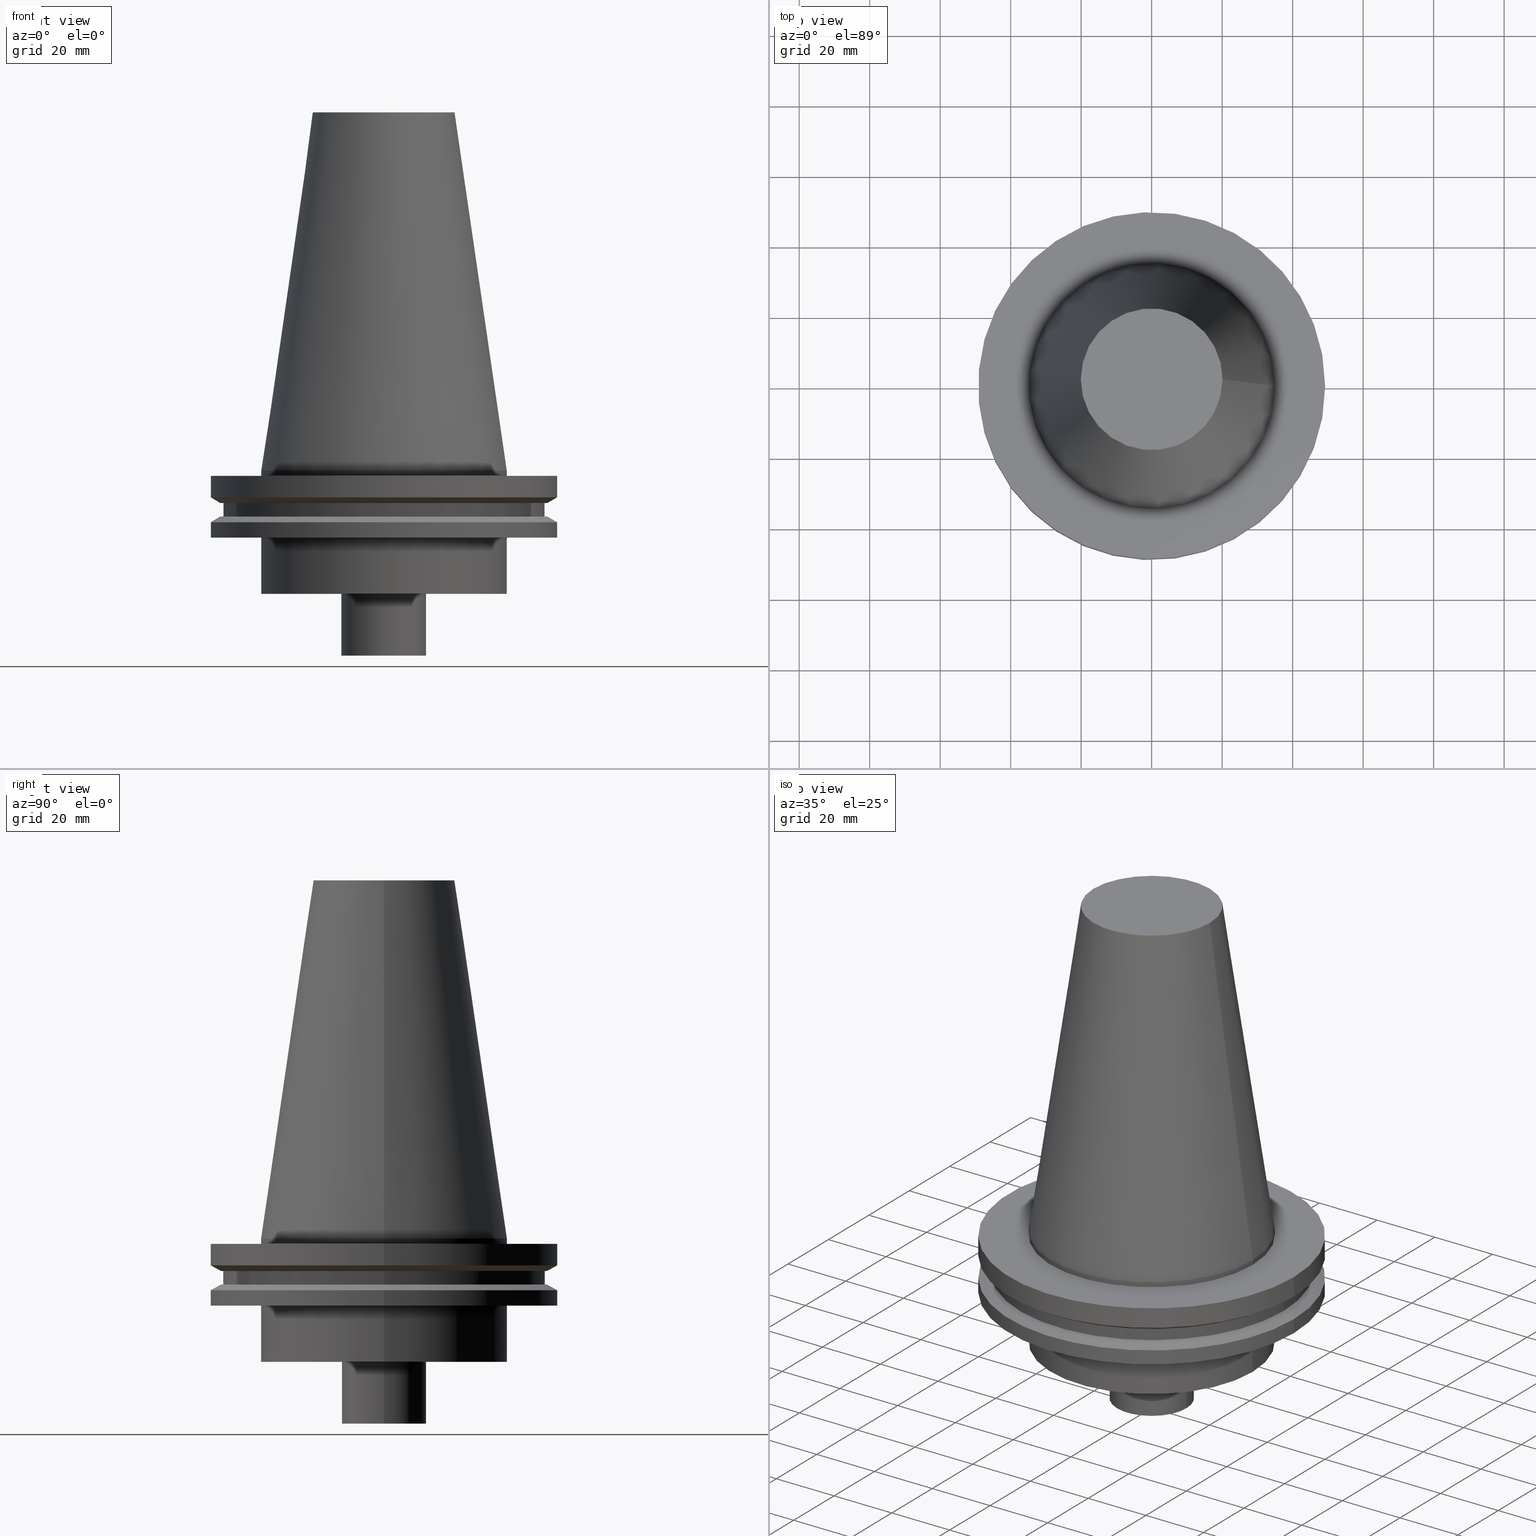
[diagram: canonical four-view strip — front | top / right | iso, engineering-drawing reading convention]
A machine part, canonical four-view strip (front | top / right | iso — engineering-drawing reading convention). The complete STEP part file that produces these views, byte-faithful:
ISO-10303-21;
HEADER;
FILE_DESCRIPTION (( 'STEP AP203' ),
    '1' );
FILE_NAME ('11.326.620.stp',
    '2022-03-09T14:49:30',
    ( '' ),
    ( '' ),
    'SwSTEP 2.0',
    'SolidWorks 2021',
    '' );
FILE_SCHEMA (( 'CONFIG_CONTROL_DESIGN' ));
ENDSEC;

DATA;
#1 = DIRECTION ( 'NONE',  ( 1.000000000000000000, 0.000000000000000000, 0.000000000000000000 ) ) ;
#2 = DATE_AND_TIME ( #391, #118 ) ;
#3 = PLANE ( 'NONE',  #380 ) ;
#4 = EDGE_LOOP ( 'NONE', ( #270 ) ) ;
#5 = DIRECTION ( 'NONE',  ( 1.000000000000000000, 0.000000000000000000, 0.000000000000000000 ) ) ;
#6 = CIRCLE ( 'NONE', #79, 49.21499999999998920 ) ;
#7 = LOCAL_TIME ( 8, 49, 30.00000000000000000, #307 ) ;
#8 = EDGE_CURVE ( 'NONE', #135, #135, #176, .T. ) ;
#9 = CIRCLE ( 'NONE', #277, 20.10819343178871321 ) ;
#10 = DIRECTION ( 'NONE',  ( 0.000000000000000000, 0.000000000000000000, -1.000000000000000000 ) ) ;
#11 = DIRECTION ( 'NONE',  ( 1.000000000000000000, 0.000000000000000000, 0.000000000000000000 ) ) ;
#12 = ADVANCED_FACE ( 'NONE', ( #89, #211 ), #326, .T. ) ;
#13 = PRODUCT_DEFINITION_SHAPE ( 'NONE', 'NONE',  #162 ) ;
#14 =( NAMED_UNIT ( * ) SI_UNIT ( $, .STERADIAN. ) SOLID_ANGLE_UNIT ( ) );
#15 = DIRECTION ( 'NONE',  ( -0.000000000000000000, -0.000000000000000000, 1.000000000000000000 ) ) ;
#16 =( NAMED_UNIT ( * ) PLANE_ANGLE_UNIT ( ) SI_UNIT ( $, .RADIAN. ) );
#17 = DIRECTION ( 'NONE',  ( 1.000000000000000000, 0.000000000000000000, 0.000000000000000000 ) ) ;
#18 = AXIS2_PLACEMENT_3D ( 'NONE', #38, #194, #5 ) ;
#19 = EDGE_CURVE ( 'NONE', #311, #311, #376, .T. ) ;
#20 = VERTEX_POINT ( 'NONE', #180 ) ;
#21 = EDGE_LOOP ( 'NONE', ( #23 ) ) ;
#22 = CARTESIAN_POINT ( 'NONE',  ( 34.92499999999999716, 0.000000000000000000, -35.00000000000000000 ) ) ;
#23 = ORIENTED_EDGE ( 'NONE', *, *, #202, .T. ) ;
#24 = ORIENTED_EDGE ( 'NONE', *, *, #314, .F. ) ;
#25 = PERSON_AND_ORGANIZATION ( #242, #220 ) ;
#26 = DIRECTION ( 'NONE',  ( -0.000000000000000000, -0.000000000000000000, 1.000000000000000000 ) ) ;
#27 = DIRECTION ( 'NONE',  ( -0.000000000000000000, -0.000000000000000000, 1.000000000000000000 ) ) ;
#28 = PERSON_AND_ORGANIZATION ( #242, #220 ) ;
#29 = DIRECTION ( 'NONE',  ( 1.000000000000000000, 0.000000000000000000, 0.000000000000000000 ) ) ;
#30 = APPROVAL_STATUS ( 'not_yet_approved' ) ;
#31 = DIRECTION ( 'NONE',  ( 1.000000000000000000, 0.000000000000000000, 0.000000000000000000 ) ) ;
#32 = ORIENTED_EDGE ( 'NONE', *, *, #8, .F. ) ;
#33 = SHAPE_DEFINITION_REPRESENTATION ( #13, #116 ) ;
#34 = PRODUCT_DEFINITION_FORMATION_WITH_SPECIFIED_SOURCE ( 'ANY', '', #237, .NOT_KNOWN. ) ;
#35 = EDGE_CURVE ( 'NONE', #225, #225, #395, .T. ) ;
#36 = FACE_OUTER_BOUND ( 'NONE', #366, .T. ) ;
#37 = ORIENTED_EDGE ( 'NONE', *, *, #49, .F. ) ;
#38 = CARTESIAN_POINT ( 'NONE',  ( 0.000000000000000000, 46.43919780457007818, -9.204999999999998295 ) ) ;
#39 = DIRECTION ( 'NONE',  ( 0.000000000000000000, 0.000000000000000000, -1.000000000000000000 ) ) ;
#40 = EDGE_LOOP ( 'NONE', ( #37 ) ) ;
#41 = FACE_BOUND ( 'NONE', #323, .T. ) ;
#42 = CONICAL_SURFACE ( 'NONE', #61, 46.43919780457007818, 1.047197551196575205 ) ;
#43 = FACE_OUTER_BOUND ( 'NONE', #352, .T. ) ;
#44 = APPLICATION_CONTEXT ( 'configuration controlled 3d designs of mechanical parts and assemblies' ) ;
#45 = CARTESIAN_POINT ( 'NONE',  ( 49.21500000000000341, 0.000000000000000000, -7.602389855251287187 ) ) ;
#46 = ADVANCED_FACE ( 'NONE', ( #122, #56 ), #173, .T. ) ;
#47 = CARTESIAN_POINT ( 'NONE',  ( 0.000000000000000000, 0.000000000000000000, -14.65761014474876944 ) ) ;
#48 = DIRECTION ( 'NONE',  ( -0.000000000000000000, -0.000000000000000000, 1.000000000000000000 ) ) ;
#49 = EDGE_CURVE ( 'NONE', #321, #321, #9, .T. ) ;
#50 = AXIS2_PLACEMENT_3D ( 'NONE', #245, #286, #11 ) ;
#51 = PERSON_AND_ORGANIZATION ( #242, #220 ) ;
#52 = ORIENTED_EDGE ( 'NONE', *, *, #278, .T. ) ;
#53 = ORIENTED_EDGE ( 'NONE', *, *, #124, .T. ) ;
#54 = DIRECTION ( 'NONE',  ( 1.000000000000000000, 0.000000000000000000, 0.000000000000000000 ) ) ;
#55 = PERSON_AND_ORGANIZATION ( #242, #220 ) ;
#56 = FACE_OUTER_BOUND ( 'NONE', #131, .T. ) ;
#57 = COORDINATED_UNIVERSAL_TIME_OFFSET ( 6, 0, .BEHIND. ) ;
#58 = CARTESIAN_POINT ( 'NONE',  ( 0.000000000000000000, 49.21499999999998920, -19.04999999999999716 ) ) ;
#59 = ADVANCED_FACE ( 'NONE', ( #203, #317 ), #108, .T. ) ;
#60 = AXIS2_PLACEMENT_3D ( 'NONE', #297, #26, #31 ) ;
#61 = AXIS2_PLACEMENT_3D ( 'NONE', #193, #285, #374 ) ;
#62 = DATE_TIME_ROLE ( 'classification_date' ) ;
#63 = DIRECTION ( 'NONE',  ( 1.000000000000000000, 0.000000000000000000, 0.000000000000000000 ) ) ;
#64 = ORIENTED_EDGE ( 'NONE', *, *, #202, .F. ) ;
#65 = PERSON_AND_ORGANIZATION_ROLE ( 'creator' ) ;
#66 = CARTESIAN_POINT ( 'NONE',  ( 0.000000000000000000, 12.00000000000000000, -52.49999999999997868 ) ) ;
#67 = CC_DESIGN_PERSON_AND_ORGANIZATION_ASSIGNMENT ( #28, #65, ( #34 ) ) ;
#68 = FACE_OUTER_BOUND ( 'NONE', #368, .T. ) ;
#69 = UNCERTAINTY_MEASURE_WITH_UNIT (LENGTH_MEASURE( 1.000000000000000082E-05 ), #377, 'distance_accuracy_value', 'NONE');
#70 = CYLINDRICAL_SURFACE ( 'NONE', #266, 34.92499999999999005 ) ;
#71 = ORIENTED_EDGE ( 'NONE', *, *, #19, .F. ) ;
#72 = AXIS2_PLACEMENT_3D ( 'NONE', #163, #39, #167 ) ;
#73 = AXIS2_PLACEMENT_3D ( 'NONE', #367, #273, #390 ) ;
#74 = DIRECTION ( 'NONE',  ( 1.000000000000000000, 0.000000000000000000, 0.000000000000000000 ) ) ;
#75 = CIRCLE ( 'NONE', #171, 34.92499999999999716 ) ;
#76 = CC_DESIGN_PERSON_AND_ORGANIZATION_ASSIGNMENT ( #330, #96, ( #34 ) ) ;
#77 = CARTESIAN_POINT ( 'NONE',  ( 45.64500000000000313, 0.000000000000000000, -13.05499999999999794 ) ) ;
#78 = VERTEX_POINT ( 'NONE', #264 ) ;
#79 = AXIS2_PLACEMENT_3D ( 'NONE', #360, #130, #63 ) ;
#80 = CARTESIAN_POINT ( 'NONE',  ( 0.000000000000000000, 0.000000000000000000, 0.000000000000000000 ) ) ;
#81 = AXIS2_PLACEMENT_3D ( 'NONE', #206, #172, #238 ) ;
#82 = DIRECTION ( 'NONE',  ( 1.000000000000000000, 0.000000000000000000, 0.000000000000000000 ) ) ;
#83 = CC_DESIGN_SECURITY_CLASSIFICATION ( #141, ( #34 ) ) ;
#84 = VERTEX_POINT ( 'NONE', #345 ) ;
#85 = ORIENTED_EDGE ( 'NONE', *, *, #343, .T. ) ;
#86 = EDGE_CURVE ( 'NONE', #384, #384, #230, .T. ) ;
#87 = ORIENTED_EDGE ( 'NONE', *, *, #124, .F. ) ;
#88 = COORDINATED_UNIVERSAL_TIME_OFFSET ( 6, 0, .BEHIND. ) ;
#89 = FACE_OUTER_BOUND ( 'NONE', #340, .T. ) ;
#90 = LOCAL_TIME ( 8, 49, 30.00000000000000000, #247 ) ;
#91 = PERSON_AND_ORGANIZATION_ROLE ( 'classification_officer' ) ;
#92 = EDGE_LOOP ( 'NONE', ( #354 ) ) ;
#93 = APPROVAL ( #262, 'UNSPECIFIED' ) ;
#94 = APPROVAL_DATE_TIME ( #304, #351 ) ;
#95 = DIRECTION ( 'NONE',  ( -0.000000000000000000, -0.000000000000000000, 1.000000000000000000 ) ) ;
#96 = PERSON_AND_ORGANIZATION_ROLE ( 'design_supplier' ) ;
#97 = FACE_BOUND ( 'NONE', #296, .T. ) ;
#98 = AXIS2_PLACEMENT_3D ( 'NONE', #281, #10, #170 ) ;
#99 = APPROVAL_ROLE ( '' ) ;
#100 = FACE_BOUND ( 'NONE', #268, .T. ) ;
#101 = DIRECTION ( 'NONE',  ( 1.000000000000000000, 0.000000000000000000, 0.000000000000000000 ) ) ;
#102 = DESIGN_CONTEXT ( 'detailed design', #387, 'design' ) ;
#103 = CARTESIAN_POINT ( 'NONE',  ( 49.21499999999998920, 0.000000000000000000, -19.04999999999999716 ) ) ;
#104 = ORIENTED_EDGE ( 'NONE', *, *, #35, .F. ) ;
#105 = CARTESIAN_POINT ( 'NONE',  ( 0.000000000000000000, 0.000000000000000000, 101.5999999999999943 ) ) ;
#106 = ORIENTED_EDGE ( 'NONE', *, *, #154, .T. ) ;
#107 = PLANE ( 'NONE',  #18 ) ;
#108 = CONICAL_SURFACE ( 'NONE', #306, 49.21499999999998920, 1.047197551196554333 ) ;
#109 = DIRECTION ( 'NONE',  ( -0.000000000000000000, -0.000000000000000000, 1.000000000000000000 ) ) ;
#110 = ADVANCED_FACE ( 'NONE', ( #265, #215 ), #254, .F. ) ;
#111 = PLANE ( 'NONE',  #98 ) ;
#112 = EDGE_LOOP ( 'NONE', ( #64 ) ) ;
#113 = AXIS2_PLACEMENT_3D ( 'NONE', #58, #364, #1 ) ;
#114 = APPLICATION_PROTOCOL_DEFINITION ( 'international standard', 'config_control_design', 1994, #387 ) ;
#115 = DIRECTION ( 'NONE',  ( -0.000000000000000000, -0.000000000000000000, 1.000000000000000000 ) ) ;
#116 = ADVANCED_BREP_SHAPE_REPRESENTATION ( '11.326.620', ( #301, #81 ), #371 ) ;
#117 = ORIENTED_EDGE ( 'NONE', *, *, #139, .F. ) ;
#118 = LOCAL_TIME ( 8, 49, 30.00000000000000000, #57 ) ;
#119 = PERSON_AND_ORGANIZATION ( #242, #220 ) ;
#120 = ORIENTED_EDGE ( 'NONE', *, *, #49, .T. ) ;
#121 = MECHANICAL_CONTEXT ( 'NONE', #44, 'mechanical' ) ;
#122 = FACE_OUTER_BOUND ( 'NONE', #319, .T. ) ;
#123 = AXIS2_PLACEMENT_3D ( 'NONE', #105, #282, #228 ) ;
#124 = EDGE_CURVE ( 'NONE', #174, #174, #148, .T. ) ;
#125 = DIRECTION ( 'NONE',  ( -0.000000000000000000, -0.000000000000000000, 1.000000000000000000 ) ) ;
#126 = AXIS2_PLACEMENT_3D ( 'NONE', #80, #243, #175 ) ;
#127 = CARTESIAN_POINT ( 'NONE',  ( 0.000000000000000000, 0.000000000000000000, -35.00000000000000000 ) ) ;
#128 = AXIS2_PLACEMENT_3D ( 'NONE', #394, #336, #251 ) ;
#129 = DATE_AND_TIME ( #244, #7 ) ;
#130 = DIRECTION ( 'NONE',  ( -0.000000000000000000, -0.000000000000000000, 1.000000000000000000 ) ) ;
#131 = EDGE_LOOP ( 'NONE', ( #106 ) ) ;
#132 = CARTESIAN_POINT ( 'NONE',  ( 0.000000000000000000, 0.000000000000000000, -13.05499999999999794 ) ) ;
#133 = ORIENTED_EDGE ( 'NONE', *, *, #154, .F. ) ;
#134 = CARTESIAN_POINT ( 'NONE',  ( 34.92499999999999005, 0.000000000000000000, 0.000000000000000000 ) ) ;
#135 = VERTEX_POINT ( 'NONE', #134 ) ;
#136 = ORIENTED_EDGE ( 'NONE', *, *, #8, .T. ) ;
#137 = FACE_OUTER_BOUND ( 'NONE', #295, .T. ) ;
#138 = FACE_BOUND ( 'NONE', #40, .T. ) ;
#139 = EDGE_CURVE ( 'NONE', #201, #201, #6, .T. ) ;
#140 = AXIS2_PLACEMENT_3D ( 'NONE', #153, #178, #54 ) ;
#141 = SECURITY_CLASSIFICATION ( '', '', #212 ) ;
#142 = FACE_BOUND ( 'NONE', #92, .T. ) ;
#143 = CARTESIAN_POINT ( 'NONE',  ( 0.000000000000000000, 0.000000000000000000, 101.5999999999999801 ) ) ;
#144 = CARTESIAN_POINT ( 'NONE',  ( 46.43919780457007818, 0.000000000000000000, -9.204999999999991189 ) ) ;
#145 = DIRECTION ( 'NONE',  ( 1.000000000000000000, 0.000000000000000000, 0.000000000000000000 ) ) ;
#146 = CIRCLE ( 'NONE', #165, 46.43919780457007818 ) ;
#147 = EDGE_CURVE ( 'NONE', #20, #20, #291, .T. ) ;
#148 = CIRCLE ( 'NONE', #246, 34.92499999999999716 ) ;
#149 = EDGE_LOOP ( 'NONE', ( #87 ) ) ;
#150 = APPROVAL_PERSON_ORGANIZATION ( #379, #93, #356 ) ;
#151 = ORIENTED_EDGE ( 'NONE', *, *, #139, .T. ) ;
#152 = VERTEX_POINT ( 'NONE', #45 ) ;
#153 = CARTESIAN_POINT ( 'NONE',  ( 0.000000000000000000, 0.000000000000000000, -19.04999999999999716 ) ) ;
#154 = EDGE_CURVE ( 'NONE', #353, #353, #249, .T. ) ;
#155 = DIRECTION ( 'NONE',  ( -0.000000000000000000, -0.000000000000000000, 1.000000000000000000 ) ) ;
#156 = APPROVAL_ROLE ( '' ) ;
#157 = DIRECTION ( 'NONE',  ( 0.000000000000000000, -0.000000000000000000, 1.000000000000000000 ) ) ;
#158 = DIRECTION ( 'NONE',  ( 1.000000000000000000, 0.000000000000000000, 0.000000000000000000 ) ) ;
#159 = AXIS2_PLACEMENT_3D ( 'NONE', #236, #115, #17 ) ;
#160 = CARTESIAN_POINT ( 'NONE',  ( 0.000000000000000000, 0.000000000000000000, 101.5999999999999943 ) ) ;
#161 = PLANE ( 'NONE',  #197 ) ;
#162 = PRODUCT_DEFINITION ( 'UNKNOWN', '', #34, #102 ) ;
#163 = CARTESIAN_POINT ( 'NONE',  ( 0.000000000000000000, 0.000000000000000000, 0.000000000000000000 ) ) ;
#164 = AXIS2_PLACEMENT_3D ( 'NONE', #259, #372, #255 ) ;
#165 = AXIS2_PLACEMENT_3D ( 'NONE', #392, #186, #256 ) ;
#166 = AXIS2_PLACEMENT_3D ( 'NONE', #258, #200, #199 ) ;
#167 = DIRECTION ( 'NONE',  ( -1.000000000000000000, 0.000000000000000000, 0.000000000000000000 ) ) ;
#168 = ADVANCED_FACE ( 'NONE', ( #224, #68 ), #308, .T. ) ;
#169 = CC_DESIGN_APPROVAL ( #252, ( #141 ) ) ;
#170 = DIRECTION ( 'NONE',  ( -1.000000000000000000, 0.000000000000000000, -0.000000000000000000 ) ) ;
#171 = AXIS2_PLACEMENT_3D ( 'NONE', #341, #344, #339 ) ;
#172 = DIRECTION ( 'NONE',  ( 0.000000000000000000, 0.000000000000000000, 1.000000000000000000 ) ) ;
#173 = CYLINDRICAL_SURFACE ( 'NONE', #50, 45.64500000000000313 ) ;
#174 = VERTEX_POINT ( 'NONE', #22 ) ;
#175 = DIRECTION ( 'NONE',  ( 1.000000000000000000, 0.000000000000000000, 0.000000000000000000 ) ) ;
#176 = CIRCLE ( 'NONE', #126, 34.92499999999999005 ) ;
#177 = VERTEX_POINT ( 'NONE', #316 ) ;
#178 = DIRECTION ( 'NONE',  ( -0.000000000000000000, -0.000000000000000000, 1.000000000000000000 ) ) ;
#179 = ORIENTED_EDGE ( 'NONE', *, *, #147, .F. ) ;
#180 = CARTESIAN_POINT ( 'NONE',  ( 45.64500000000000313, 0.000000000000000000, -9.204999999999991189 ) ) ;
#181 = EDGE_LOOP ( 'NONE', ( #71 ) ) ;
#182 = CARTESIAN_POINT ( 'NONE',  ( 0.000000000000000000, 0.000000000000000000, -1.499999999999987566 ) ) ;
#183 = CIRCLE ( 'NONE', #328, 49.21500000000000341 ) ;
#184 = APPROVAL_DATE_TIME ( #2, #252 ) ;
#185 = FACE_OUTER_BOUND ( 'NONE', #21, .T. ) ;
#186 = DIRECTION ( 'NONE',  ( -0.000000000000000000, -0.000000000000000000, 1.000000000000000000 ) ) ;
#187 = PRODUCT_RELATED_PRODUCT_CATEGORY ( 'detail', '', ( #237 ) ) ;
#188 = EDGE_LOOP ( 'NONE', ( #240 ) ) ;
#189 = PERSON_AND_ORGANIZATION ( #242, #220 ) ;
#190 = DIRECTION ( 'NONE',  ( -0.000000000000000000, -0.000000000000000000, 1.000000000000000000 ) ) ;
#191 = FACE_OUTER_BOUND ( 'NONE', #332, .T. ) ;
#192 = ADVANCED_FACE ( 'NONE', ( #191 ), #3, .F. ) ;
#193 = CARTESIAN_POINT ( 'NONE',  ( 0.000000000000000000, 0.000000000000000000, -9.204999999999991189 ) ) ;
#194 = DIRECTION ( 'NONE',  ( 0.000000000000000000, -0.000000000000000000, 1.000000000000000000 ) ) ;
#195 = EDGE_LOOP ( 'NONE', ( #325 ) ) ;
#196 = CARTESIAN_POINT ( 'NONE',  ( 0.000000000000000000, 0.000000000000000000, 101.5999999999999943 ) ) ;
#197 = AXIS2_PLACEMENT_3D ( 'NONE', #222, #335, #219 ) ;
#198 = AXIS2_PLACEMENT_3D ( 'NONE', #305, #221, #101 ) ;
#199 = DIRECTION ( 'NONE',  ( 1.000000000000000000, 0.000000000000000000, 0.000000000000000000 ) ) ;
#200 = DIRECTION ( 'NONE',  ( -0.000000000000000000, -0.000000000000000000, 1.000000000000000000 ) ) ;
#201 = VERTEX_POINT ( 'NONE', #287 ) ;
#202 = EDGE_CURVE ( 'NONE', #177, #177, #347, .T. ) ;
#203 = FACE_BOUND ( 'NONE', #188, .T. ) ;
#204 = CARTESIAN_POINT ( 'NONE',  ( 20.10819343178871321, 0.000000000000000000, 101.5999999999999801 ) ) ;
#205 = EDGE_LOOP ( 'NONE', ( #136 ) ) ;
#206 = CARTESIAN_POINT ( 'NONE',  ( 0.000000000000000000, 0.000000000000000000, 0.000000000000000000 ) ) ;
#207 = ORIENTED_EDGE ( 'NONE', *, *, #35, .T. ) ;
#208 = CC_DESIGN_DATE_AND_TIME_ASSIGNMENT ( #324, #218, ( #162 ) ) ;
#209 = CALENDAR_DATE ( 2022, 9, 3 ) ;
#210 = LOCAL_TIME ( 8, 49, 30.00000000000000000, #88 ) ;
#211 = FACE_OUTER_BOUND ( 'NONE', #293, .T. ) ;
#212 = SECURITY_CLASSIFICATION_LEVEL ( 'unclassified' ) ;
#213 = EDGE_LOOP ( 'NONE', ( #133 ) ) ;
#214 = CALENDAR_DATE ( 2022, 9, 3 ) ;
#215 = FACE_OUTER_BOUND ( 'NONE', #149, .T. ) ;
#216 = ORIENTED_EDGE ( 'NONE', *, *, #314, .T. ) ;
#217 = CIRCLE ( 'NONE', #164, 12.00000000000000000 ) ;
#218 = DATE_TIME_ROLE ( 'creation_date' ) ;
#219 = DIRECTION ( 'NONE',  ( -1.000000000000000000, 0.000000000000000000, -0.000000000000000000 ) ) ;
#220 = ORGANIZATION ( 'UNSPECIFIED', 'UNSPECIFIED', '' ) ;
#221 = DIRECTION ( 'NONE',  ( 0.000000000000000000, -0.000000000000000000, 1.000000000000000000 ) ) ;
#222 = CARTESIAN_POINT ( 'NONE',  ( 0.000000000000000000, 49.21499999999999631, -1.499999999999992895 ) ) ;
#223 = ADVANCED_FACE ( 'NONE', ( #331, #36 ), #280, .F. ) ;
#224 = FACE_OUTER_BOUND ( 'NONE', #226, .T. ) ;
#225 = VERTEX_POINT ( 'NONE', #144 ) ;
#226 = EDGE_LOOP ( 'NONE', ( #117 ) ) ;
#227 = APPROVAL_PERSON_ORGANIZATION ( #55, #252, #156 ) ;
#228 = DIRECTION ( 'NONE',  ( 1.000000000000000000, 0.000000000000000000, 0.000000000000000000 ) ) ;
#229 = ORIENTED_EDGE ( 'NONE', *, *, #343, .F. ) ;
#230 = CIRCLE ( 'NONE', #349, 34.92499999999999005 ) ;
#231 = FACE_OUTER_BOUND ( 'NONE', #378, .T. ) ;
#232 = ADVANCED_FACE ( 'NONE', ( #362, #248 ), #302, .T. ) ;
#233 = CYLINDRICAL_SURFACE ( 'NONE', #123, 49.21499999999999631 ) ;
#234 = CC_DESIGN_PERSON_AND_ORGANIZATION_ASSIGNMENT ( #51, #289, ( #237 ) ) ;
#235 = CALENDAR_DATE ( 2022, 9, 3 ) ;
#236 = CARTESIAN_POINT ( 'NONE',  ( 0.000000000000000000, 0.000000000000000000, 0.000000000000000000 ) ) ;
#237 = PRODUCT ( '11.326.620', '11.326.620', '', ( #121 ) ) ;
#238 = DIRECTION ( 'NONE',  ( 1.000000000000000000, 0.000000000000000000, 0.000000000000000000 ) ) ;
#239 = APPLICATION_PROTOCOL_DEFINITION ( 'international standard', 'config_control_design', 1994, #44 ) ;
#240 = ORIENTED_EDGE ( 'NONE', *, *, #298, .F. ) ;
#241 = ADVANCED_FACE ( 'NONE', ( #276, #97 ), #327, .F. ) ;
#242 = PERSON ( 'UNSPECIFIED', 'UNSPECIFIED', 'UNSPECIFIED', ('UNSPECIFIED'), ('UNSPECIFIED'), ('UNSPECIFIED') ) ;
#243 = DIRECTION ( 'NONE',  ( -0.000000000000000000, -0.000000000000000000, 1.000000000000000000 ) ) ;
#244 = CALENDAR_DATE ( 2022, 9, 3 ) ;
#245 = CARTESIAN_POINT ( 'NONE',  ( 0.000000000000000000, 0.000000000000000000, 101.5999999999999943 ) ) ;
#246 = AXIS2_PLACEMENT_3D ( 'NONE', #127, #190, #333 ) ;
#247 = COORDINATED_UNIVERSAL_TIME_OFFSET ( 6, 0, .BEHIND. ) ;
#248 = FACE_OUTER_BOUND ( 'NONE', #385, .T. ) ;
#249 = CIRCLE ( 'NONE', #299, 45.64500000000000313 ) ;
#250 = CC_DESIGN_APPROVAL ( #93, ( #162 ) ) ;
#251 = DIRECTION ( 'NONE',  ( 1.000000000000000000, 0.000000000000000000, 0.000000000000000000 ) ) ;
#252 = APPROVAL ( #30, 'UNSPECIFIED' ) ;
#253 = EDGE_LOOP ( 'NONE', ( #216 ) ) ;
#254 = PLANE ( 'NONE',  #198 ) ;
#255 = DIRECTION ( 'NONE',  ( 1.000000000000000000, 0.000000000000000000, 0.000000000000000000 ) ) ;
#256 = DIRECTION ( 'NONE',  ( 1.000000000000000000, 0.000000000000000000, 0.000000000000000000 ) ) ;
#257 = ORIENTED_EDGE ( 'NONE', *, *, #86, .F. ) ;
#258 = CARTESIAN_POINT ( 'NONE',  ( 0.000000000000000000, 0.000000000000000000, -52.49999999999997868 ) ) ;
#259 = CARTESIAN_POINT ( 'NONE',  ( 0.000000000000000000, 0.000000000000000000, -35.00000000000000000 ) ) ;
#260 = APPROVAL_PERSON_ORGANIZATION ( #25, #351, #99 ) ;
#261 = ADVANCED_FACE ( 'NONE', ( #100, #185 ), #161, .F. ) ;
#262 = APPROVAL_STATUS ( 'not_yet_approved' ) ;
#263 = ORIENTED_EDGE ( 'NONE', *, *, #298, .T. ) ;
#264 = CARTESIAN_POINT ( 'NONE',  ( 12.00000000000000000, 0.000000000000000000, -35.00000000000000000 ) ) ;
#265 = FACE_BOUND ( 'NONE', #253, .T. ) ;
#266 = AXIS2_PLACEMENT_3D ( 'NONE', #196, #109, #74 ) ;
#267 = CARTESIAN_POINT ( 'NONE',  ( 34.92499999999999716, 0.000000000000000000, -19.04999999999999716 ) ) ;
#268 = EDGE_LOOP ( 'NONE', ( #257 ) ) ;
#269 = DATE_AND_TIME ( #235, #363 ) ;
#270 = ORIENTED_EDGE ( 'NONE', *, *, #365, .F. ) ;
#271 = VERTEX_POINT ( 'NONE', #294 ) ;
#272 = CARTESIAN_POINT ( 'NONE',  ( 0.000000000000000000, 0.000000000000000000, -9.204999999999991189 ) ) ;
#273 = DIRECTION ( 'NONE',  ( 0.000000000000000000, 0.000000000000000000, -1.000000000000000000 ) ) ;
#274 = CC_DESIGN_PERSON_AND_ORGANIZATION_ASSIGNMENT ( #119, #350, ( #162 ) ) ;
#275 = DIRECTION ( 'NONE',  ( 1.000000000000000000, 0.000000000000000000, 0.000000000000000000 ) ) ;
#276 = FACE_OUTER_BOUND ( 'NONE', #181, .T. ) ;
#277 = AXIS2_PLACEMENT_3D ( 'NONE', #143, #48, #82 ) ;
#278 = EDGE_CURVE ( 'NONE', #152, #152, #183, .T. ) ;
#279 = DIRECTION ( 'NONE',  ( 1.000000000000000000, 0.000000000000000000, 0.000000000000000000 ) ) ;
#280 = PLANE ( 'NONE',  #73 ) ;
#281 = CARTESIAN_POINT ( 'NONE',  ( 0.000000000000000000, 20.10819343178871321, 101.5999999999999943 ) ) ;
#282 = DIRECTION ( 'NONE',  ( -0.000000000000000000, -0.000000000000000000, 1.000000000000000000 ) ) ;
#283 = AXIS2_PLACEMENT_3D ( 'NONE', #182, #155, #158 ) ;
#284 = FACE_OUTER_BOUND ( 'NONE', #195, .T. ) ;
#285 = DIRECTION ( 'NONE',  ( -0.000000000000000000, -0.000000000000000000, 1.000000000000000000 ) ) ;
#286 = DIRECTION ( 'NONE',  ( -0.000000000000000000, -0.000000000000000000, 1.000000000000000000 ) ) ;
#287 = CARTESIAN_POINT ( 'NONE',  ( 49.21499999999998920, 0.000000000000000000, -14.65761014474876944 ) ) ;
#288 = CARTESIAN_POINT ( 'NONE',  ( 0.000000000000000000, 0.000000000000000000, -1.499999999999987566 ) ) ;
#289 = PERSON_AND_ORGANIZATION_ROLE ( 'design_owner' ) ;
#290 = DIRECTION ( 'NONE',  ( 0.000000000000000000, 0.000000000000000000, -1.000000000000000000 ) ) ;
#291 = CIRCLE ( 'NONE', #60, 45.64500000000000313 ) ;
#292 = COORDINATED_UNIVERSAL_TIME_OFFSET ( 6, 0, .BEHIND. ) ;
#293 = EDGE_LOOP ( 'NONE', ( #85 ) ) ;
#294 = CARTESIAN_POINT ( 'NONE',  ( 12.00000000000000000, 0.000000000000000000, -52.49999999999997868 ) ) ;
#295 = EDGE_LOOP ( 'NONE', ( #52 ) ) ;
#296 = EDGE_LOOP ( 'NONE', ( #313 ) ) ;
#297 = CARTESIAN_POINT ( 'NONE',  ( 0.000000000000000000, 0.000000000000000000, -9.204999999999991189 ) ) ;
#298 = EDGE_CURVE ( 'NONE', #84, #84, #146, .T. ) ;
#299 = AXIS2_PLACEMENT_3D ( 'NONE', #132, #95, #369 ) ;
#300 = CARTESIAN_POINT ( 'NONE',  ( 0.000000000000000000, 0.000000000000000000, -7.602389855251287187 ) ) ;
#301 = MANIFOLD_SOLID_BREP ( 'CKB', #322 ) ;
#302 = CYLINDRICAL_SURFACE ( 'NONE', #329, 34.92499999999999716 ) ;
#303 = CC_DESIGN_DATE_AND_TIME_ASSIGNMENT ( #129, #62, ( #141 ) ) ;
#304 = DATE_AND_TIME ( #214, #90 ) ;
#305 = CARTESIAN_POINT ( 'NONE',  ( 0.000000000000000000, 34.92499999999999716, -35.00000000000000000 ) ) ;
#306 = AXIS2_PLACEMENT_3D ( 'NONE', #47, #290, #383 ) ;
#307 = COORDINATED_UNIVERSAL_TIME_OFFSET ( 6, 0, .BEHIND. ) ;
#308 = CYLINDRICAL_SURFACE ( 'NONE', #128, 49.21499999999998920 ) ;
#309 = CC_DESIGN_APPROVAL ( #351, ( #34 ) ) ;
#310 = FACE_OUTER_BOUND ( 'NONE', #373, .T. ) ;
#311 = VERTEX_POINT ( 'NONE', #103 ) ;
#312 = ADVANCED_FACE ( 'NONE', ( #138, #370 ), #382, .T. ) ;
#313 = ORIENTED_EDGE ( 'NONE', *, *, #365, .T. ) ;
#314 = EDGE_CURVE ( 'NONE', #78, #78, #217, .T. ) ;
#315 = FACE_OUTER_BOUND ( 'NONE', #355, .T. ) ;
#316 = CARTESIAN_POINT ( 'NONE',  ( 49.21499999999999631, 0.000000000000000000, -1.499999999999987566 ) ) ;
#317 = FACE_OUTER_BOUND ( 'NONE', #359, .T. ) ;
#318 = CARTESIAN_POINT ( 'NONE',  ( 34.92499999999999005, 0.000000000000000000, -1.499999999999987566 ) ) ;
#319 = EDGE_LOOP ( 'NONE', ( #179 ) ) ;
#320 = CC_DESIGN_PERSON_AND_ORGANIZATION_ASSIGNMENT ( #189, #91, ( #141 ) ) ;
#321 = VERTEX_POINT ( 'NONE', #204 ) ;
#322 = CLOSED_SHELL ( 'NONE', ( #312, #375, #110, #232, #241, #168, #59, #223, #46, #393, #386, #338, #261, #334, #12, #192 ) ) ;
#323 = EDGE_LOOP ( 'NONE', ( #207 ) ) ;
#324 = DATE_AND_TIME ( #209, #210 ) ;
#325 = ORIENTED_EDGE ( 'NONE', *, *, #86, .T. ) ;
#326 = CYLINDRICAL_SURFACE ( 'NONE', #159, 12.00000000000000000 ) ;
#327 = PLANE ( 'NONE',  #113 ) ;
#328 = AXIS2_PLACEMENT_3D ( 'NONE', #300, #27, #275 ) ;
#329 = AXIS2_PLACEMENT_3D ( 'NONE', #160, #125, #279 ) ;
#330 = PERSON_AND_ORGANIZATION ( #242, #220 ) ;
#331 = FACE_BOUND ( 'NONE', #213, .T. ) ;
#332 = EDGE_LOOP ( 'NONE', ( #229 ) ) ;
#333 = DIRECTION ( 'NONE',  ( 1.000000000000000000, 0.000000000000000000, 0.000000000000000000 ) ) ;
#334 = ADVANCED_FACE ( 'NONE', ( #231, #284 ), #70, .T. ) ;
#335 = DIRECTION ( 'NONE',  ( 0.000000000000000000, 0.000000000000000000, -1.000000000000000000 ) ) ;
#336 = DIRECTION ( 'NONE',  ( -0.000000000000000000, -0.000000000000000000, 1.000000000000000000 ) ) ;
#337 = CIRCLE ( 'NONE', #166, 12.00000000000000000 ) ;
#338 = ADVANCED_FACE ( 'NONE', ( #342, #137 ), #233, .T. ) ;
#339 = DIRECTION ( 'NONE',  ( 1.000000000000000000, 0.000000000000000000, 0.000000000000000000 ) ) ;
#340 = EDGE_LOOP ( 'NONE', ( #24 ) ) ;
#341 = CARTESIAN_POINT ( 'NONE',  ( 0.000000000000000000, 0.000000000000000000, -19.04999999999999716 ) ) ;
#342 = FACE_OUTER_BOUND ( 'NONE', #112, .T. ) ;
#343 = EDGE_CURVE ( 'NONE', #271, #271, #337, .T. ) ;
#344 = DIRECTION ( 'NONE',  ( -0.000000000000000000, -0.000000000000000000, 1.000000000000000000 ) ) ;
#345 = CARTESIAN_POINT ( 'NONE',  ( 46.43919780457007818, 0.000000000000000000, -13.05499999999999794 ) ) ;
#346 = APPROVAL_DATE_TIME ( #269, #93 ) ;
#347 = CIRCLE ( 'NONE', #283, 49.21499999999999631 ) ;
#348 = DIRECTION ( 'NONE',  ( 1.000000000000000000, 0.000000000000000000, 0.000000000000000000 ) ) ;
#349 = AXIS2_PLACEMENT_3D ( 'NONE', #288, #15, #145 ) ;
#350 = PERSON_AND_ORGANIZATION_ROLE ( 'creator' ) ;
#351 = APPROVAL ( #361, 'UNSPECIFIED' ) ;
#352 = EDGE_LOOP ( 'NONE', ( #381 ) ) ;
#353 = VERTEX_POINT ( 'NONE', #77 ) ;
#354 = ORIENTED_EDGE ( 'NONE', *, *, #147, .T. ) ;
#355 = EDGE_LOOP ( 'NONE', ( #120 ) ) ;
#356 = APPROVAL_ROLE ( '' ) ;
#357 = AXIS2_PLACEMENT_3D ( 'NONE', #272, #389, #348 ) ;
#358 = ORIENTED_EDGE ( 'NONE', *, *, #19, .T. ) ;
#359 = EDGE_LOOP ( 'NONE', ( #151 ) ) ;
#360 = CARTESIAN_POINT ( 'NONE',  ( 0.000000000000000000, 0.000000000000000000, -14.65761014474876944 ) ) ;
#361 = APPROVAL_STATUS ( 'not_yet_approved' ) ;
#362 = FACE_OUTER_BOUND ( 'NONE', #4, .T. ) ;
#363 = LOCAL_TIME ( 8, 49, 30.00000000000000000, #292 ) ;
#364 = DIRECTION ( 'NONE',  ( 0.000000000000000000, -0.000000000000000000, 1.000000000000000000 ) ) ;
#365 = EDGE_CURVE ( 'NONE', #388, #388, #75, .T. ) ;
#366 = EDGE_LOOP ( 'NONE', ( #263 ) ) ;
#367 = CARTESIAN_POINT ( 'NONE',  ( 0.000000000000000000, 45.64500000000000313, -13.05499999999999794 ) ) ;
#368 = EDGE_LOOP ( 'NONE', ( #358 ) ) ;
#369 = DIRECTION ( 'NONE',  ( 1.000000000000000000, 0.000000000000000000, 0.000000000000000000 ) ) ;
#370 = FACE_OUTER_BOUND ( 'NONE', #205, .T. ) ;
#371 =( GEOMETRIC_REPRESENTATION_CONTEXT ( 3 ) GLOBAL_UNCERTAINTY_ASSIGNED_CONTEXT ( ( #69 ) ) GLOBAL_UNIT_ASSIGNED_CONTEXT ( ( #377, #16, #14 ) ) REPRESENTATION_CONTEXT ( 'NONE', 'WORKASPACE' ) );
#372 = DIRECTION ( 'NONE',  ( -0.000000000000000000, -0.000000000000000000, 1.000000000000000000 ) ) ;
#373 = EDGE_LOOP ( 'NONE', ( #104 ) ) ;
#374 = DIRECTION ( 'NONE',  ( 1.000000000000000000, 0.000000000000000000, 0.000000000000000000 ) ) ;
#375 = ADVANCED_FACE ( 'NONE', ( #315 ), #111, .F. ) ;
#376 = CIRCLE ( 'NONE', #140, 49.21499999999998920 ) ;
#377 =( LENGTH_UNIT ( ) NAMED_UNIT ( * ) SI_UNIT ( .MILLI., .METRE. ) );
#378 = EDGE_LOOP ( 'NONE', ( #32 ) ) ;
#379 = PERSON_AND_ORGANIZATION ( #242, #220 ) ;
#380 = AXIS2_PLACEMENT_3D ( 'NONE', #66, #157, #29 ) ;
#381 = ORIENTED_EDGE ( 'NONE', *, *, #278, .F. ) ;
#382 = CONICAL_SURFACE ( 'NONE', #72, 34.92499999999999005, 0.1448138465474119452 ) ;
#383 = DIRECTION ( 'NONE',  ( -1.000000000000000000, 0.000000000000000000, 0.000000000000000000 ) ) ;
#384 = VERTEX_POINT ( 'NONE', #318 ) ;
#385 = EDGE_LOOP ( 'NONE', ( #53 ) ) ;
#386 = ADVANCED_FACE ( 'NONE', ( #43, #41 ), #42, .T. ) ;
#387 = APPLICATION_CONTEXT ( 'configuration controlled 3d designs of mechanical parts and assemblies' ) ;
#388 = VERTEX_POINT ( 'NONE', #267 ) ;
#389 = DIRECTION ( 'NONE',  ( -0.000000000000000000, -0.000000000000000000, 1.000000000000000000 ) ) ;
#390 = DIRECTION ( 'NONE',  ( -1.000000000000000000, 0.000000000000000000, -0.000000000000000000 ) ) ;
#391 = CALENDAR_DATE ( 2022, 9, 3 ) ;
#392 = CARTESIAN_POINT ( 'NONE',  ( 0.000000000000000000, 0.000000000000000000, -13.05499999999999794 ) ) ;
#393 = ADVANCED_FACE ( 'NONE', ( #310, #142 ), #107, .F. ) ;
#394 = CARTESIAN_POINT ( 'NONE',  ( 0.000000000000000000, 0.000000000000000000, 101.5999999999999943 ) ) ;
#395 = CIRCLE ( 'NONE', #357, 46.43919780457007818 ) ;
ENDSEC;
END-ISO-10303-21;
